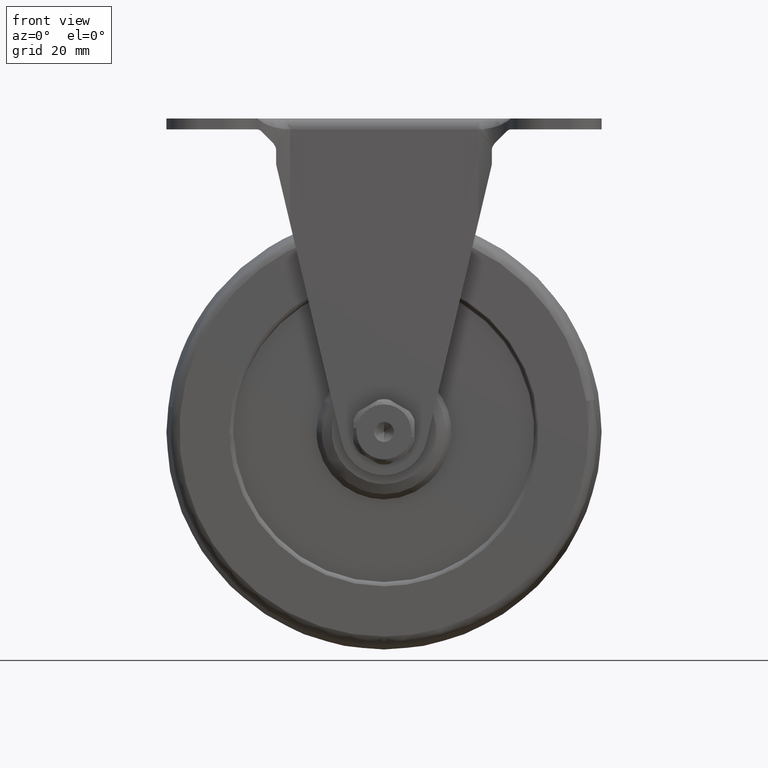
[diagram: clean part render]
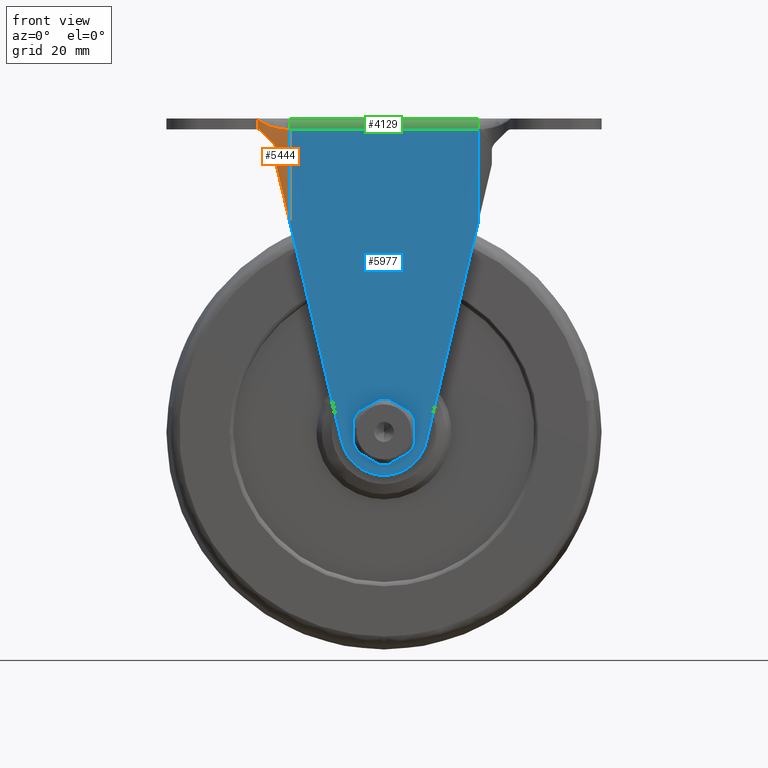
[diagram: same view with three faces highlighted in distinct colors, each labeled with its STEP entity id]
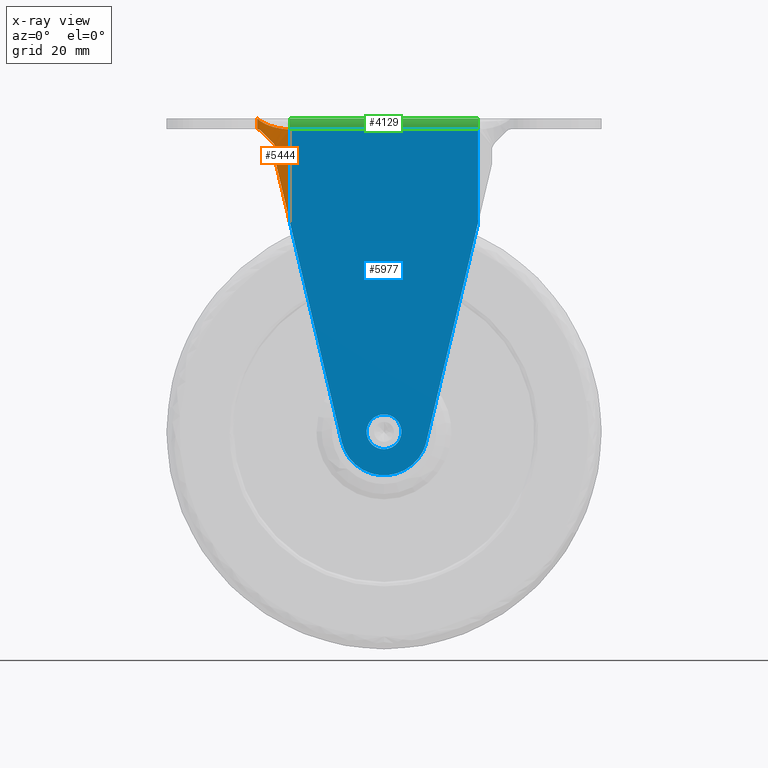
[diagram: x-ray of the same camera — body ghosted, the three highlighted faces saturated]
A machine part, front view with three faces highlighted in distinct colors.
The next image is the same camera in x-ray (body ghosted, the three faces saturated) — at least one of them is partly hidden behind the body in this view.
Their STEP definitions:

[orange] entity #5444 — the highlighted face is a freeform B-spline surface patch.
#3632=CARTESIAN_POINT('',(-24.746450492839500,-19.148997307606152,61.273261414327301));
#3633=VERTEX_POINT('',#3632);
#3639=CARTESIAN_POINT('',(-24.800000000000001,-19.172222607755099,61.732968363290809));
#3640=VERTEX_POINT('',#3639);
#3641=CARTESIAN_POINT('',(-24.800000000000001,-19.172222607755099,61.732968363290809));
#3642=CARTESIAN_POINT('',(-24.800000000000001,-19.172222607755099,61.577262325133503));
#3643=CARTESIAN_POINT('',(-24.782062493051509,-19.164288705788390,61.424046595016762));
#3644=CARTESIAN_POINT('',(-24.746450492839500,-19.148997307606152,61.273261414327301));
#3645=QUASI_UNIFORM_CURVE('',3,(#3641,#3642,#3643,#3644),.UNSPECIFIED.,.F.,.U.);
#3646=EDGE_CURVE('',#3640,#3633,#3645,.T.);
#3689=CARTESIAN_POINT('',(-24.800000000000001,-19.172222607755099,64.817025480499410));
#3690=VERTEX_POINT('',#3689);
#3696=CARTESIAN_POINT('',(-25.376071416192602,-19.452582276446499,66.221456820300588));
#3697=VERTEX_POINT('',#3696);
#3698=CARTESIAN_POINT('',(-25.376071416192548,-19.452582276446499,66.221456820300588));
#3699=CARTESIAN_POINT('',(-25.288305656293140,-19.405432152018331,66.132472638120461));
#3700=CARTESIAN_POINT('',(-25.208731183071329,-19.364774535838510,66.035233419549286));
#3701=CARTESIAN_POINT('',(-25.102636253345530,-19.312276335594792,65.876741512824367));
#3702=CARTESIAN_POINT('',(-25.069493156734531,-19.296201236842752,65.821794139042723));
#3703=CARTESIAN_POINT('',(-25.023357769710969,-19.274159476466661,65.736044459356251));
#3704=CARTESIAN_POINT('',(-25.008547254347100,-19.267144333266589,65.706834853134112));
#3705=CARTESIAN_POINT('',(-24.980487404518289,-19.253948593113620,65.647951213895155));
#3706=CARTESIAN_POINT('',(-24.967199965806049,-19.247749529894801,65.618214114758516));
#3707=CARTESIAN_POINT('',(-24.904455989459748,-19.218663149374859,65.468070787849186));
#3708=CARTESIAN_POINT('',(-24.865976508506719,-19.201423176839331,65.343335425819348));
#3709=CARTESIAN_POINT('',(-24.826660984099380,-19.183945498531230,65.149132969683237));
#3710=CARTESIAN_POINT('',(-24.816640047322220,-19.179530846128898,65.082953961616624));
#3711=CARTESIAN_POINT('',(-24.803343513357209,-19.173684568972170,64.950432876480775));
#3712=CARTESIAN_POINT('',(-24.800000000000011,-19.172222607755099,64.883877869309046));
#3713=CARTESIAN_POINT('',(-24.800000000000001,-19.172222607755099,64.817025480499410));
#3714=B_SPLINE_CURVE_WITH_KNOTS('',3,(#3698,#3699,#3700,#3701,#3702,#3703,#3704,#3705,#3706,#3707,#3708,#3709,#3710,#3711,#3712,#3713),.UNSPECIFIED.,.F.,.U.,(4,2,2,2,2,2,2,4),(0.0,0.250000000000000,0.374999999999992,0.437499999999999,0.500000000000007,0.750000000000016,0.875000000000008,1.0),.UNSPECIFIED.);
#3715=EDGE_CURVE('',#3697,#3690,#3714,.T.);
#3894=CARTESIAN_POINT('',(-28.316012066761299,-22.168579450770501,69.202211669900592));
#3895=VERTEX_POINT('',#3894);
#3901=CARTESIAN_POINT('',(-29.027976358665100,-23.554338269138050,69.499995999999996));
#3902=VERTEX_POINT('',#3901);
#3903=CARTESIAN_POINT('',(-29.027976358665100,-23.554338269138050,69.499995999999996));
#3904=CARTESIAN_POINT('',(-28.978537739837840,-23.429502215446519,69.499995999999982));
#3905=CARTESIAN_POINT('',(-28.926248092743830,-23.306650537670809,69.496362867878616));
#3906=CARTESIAN_POINT('',(-28.816346603409709,-23.065187501959340,69.478928286822807));
#3907=CARTESIAN_POINT('',(-28.758731087578219,-22.946572110590228,69.465163793347472));
#3908=CARTESIAN_POINT('',(-28.638670202607450,-22.713998409055801,69.423295844131630));
#3909=CARTESIAN_POINT('',(-28.576213961229371,-22.600027696880030,69.395304697051202));
#3910=CARTESIAN_POINT('',(-28.479505253617511,-22.433147516626850,69.337012235574917));
#3911=CARTESIAN_POINT('',(-28.446596457234140,-22.377928373967769,69.314689513206034));
#3912=CARTESIAN_POINT('',(-28.380984711299931,-22.270707176989951,69.263625437939368));
#3913=CARTESIAN_POINT('',(-28.348289864608429,-22.218701855702761,69.234937569468897));
#3914=CARTESIAN_POINT('',(-28.316012066761299,-22.168579450770501,69.202211669900592));
#3915=B_SPLINE_CURVE_WITH_KNOTS('',3,(#3903,#3904,#3905,#3906,#3907,#3908,#3909,#3910,#3911,#3912,#3913,#3914),.UNSPECIFIED.,.F.,.U.,(4,2,2,2,2,4),(0.0,0.250000000000000,0.500000000000000,0.750000000000000,0.875000000000000,1.0),.UNSPECIFIED.);
#3916=EDGE_CURVE('',#3902,#3895,#3915,.T.);
#4025=CARTESIAN_POINT('',(-21.590020418879149,-18.499980000000001,69.500000000000000));
#4026=VERTEX_POINT('',#4025);
#4042=CARTESIAN_POINT('',(-29.102518009696151,-23.749993471923052,72.0));
#4043=VERTEX_POINT('',#4042);
#4056=CARTESIAN_POINT('',(-21.590020418879149,-18.499980000000001,69.500000000000000));
#4057=CARTESIAN_POINT('',(-21.711781143334989,-18.501588315176871,69.501071944868144));
#4058=CARTESIAN_POINT('',(-21.957916386643490,-18.504839470663530,69.503238845665720));
#4059=CARTESIAN_POINT('',(-22.330030730454389,-18.531522098056438,69.520289844050765));
#4060=CARTESIAN_POINT('',(-22.707993547285170,-18.575317882872781,69.547366779071794));
#4061=CARTESIAN_POINT('',(-23.090826168394070,-18.638778897941169,69.585521736295021));
#4062=CARTESIAN_POINT('',(-23.477450627216879,-18.722395735431110,69.634462313198938));
#4063=CARTESIAN_POINT('',(-23.866687284064600,-18.827175287227011,69.694268279607854));
#4064=CARTESIAN_POINT('',(-24.257253923230110,-18.953915082126031,69.764917179816834));
#4065=CARTESIAN_POINT('',(-24.647766335639620,-19.103392166814480,69.846412527738465));
#4066=CARTESIAN_POINT('',(-25.036735796582299,-19.276295399294192,69.938760427256014));
#4067=CARTESIAN_POINT('',(-25.422582909634439,-19.473238762950590,70.041929176621835));
#4068=CARTESIAN_POINT('',(-25.803592711552000,-19.694711202723280,70.156041206724936));
#4069=CARTESIAN_POINT('',(-26.171558866375712,-19.936894088294650,70.278446251848521));
#4070=CARTESIAN_POINT('',(-26.536833983881142,-20.207213383370618,70.414755119525054));
#4071=CARTESIAN_POINT('',(-26.907986784484581,-20.516215257702822,70.569057690410816));
#4072=CARTESIAN_POINT('',(-27.295808460996302,-20.883174700718978,70.747583183118664));
#4073=CARTESIAN_POINT('',(-27.691461186906370,-21.313845332889962,70.950509727599552));
#4074=CARTESIAN_POINT('',(-28.084957130984009,-21.813357904884580,71.177786207434792));
#4075=CARTESIAN_POINT('',(-28.462901003271352,-22.386521870755839,71.429512543266029));
#4076=CARTESIAN_POINT('',(-28.817378516495769,-23.034338473690109,71.705377335596381));
#4077=CARTESIAN_POINT('',(-29.005313332289621,-23.506025116446182,71.899562488771465));
#4078=CARTESIAN_POINT('',(-29.102518009696151,-23.749993471923052,72.0));
#4079=B_SPLINE_CURVE_WITH_KNOTS('',3,(#4056,#4057,#4058,#4059,#4060,#4061,#4062,#4063,#4064,#4065,#4066,#4067,#4068,#4069,#4070,#4071,#4072,#4073,#4074,#4075,#4076,#4077,#4078),.UNSPECIFIED.,.F.,.U.,(4,1,1,1,1,1,1,1,1,1,1,1,1,1,1,1,1,1,1,1,4),(0.0,0.036053217283680,0.072880376228309,0.110510700572668,0.148971582655785,0.188288678264745,0.228486003162911,0.269586029493015,0.311609780639697,0.354576923476005,0.398505857208004,0.443413798272667,0.489316860941036,0.533824184303124,0.583836994325608,0.639366959863031,0.700422420056334,0.767009470176379,0.839132633946430,0.916795297580047,1.0),.UNSPECIFIED.);
#4080=EDGE_CURVE('',#4026,#4043,#4079,.T.);
#4873=CARTESIAN_POINT('',(-21.590020418879149,-18.499980000000001,47.908584445823003));
#4874=VERTEX_POINT('',#4873);
#4875=CARTESIAN_POINT('',(-21.590020418879149,-18.499980000000001,47.908584445823003));
#4876=CARTESIAN_POINT('',(-23.234960101091975,-18.499980086128858,54.873442519763131));
#4877=CARTESIAN_POINT('',(-24.746450492839390,-19.148997307606159,61.273261414327322));
#4885=(BOUNDED_CURVE()B_SPLINE_CURVE(2,(#4875,#4876,#4877),.UNSPECIFIED.,.F.,.U.)CURVE()GEOMETRIC_REPRESENTATION_ITEM()QUASI_UNIFORM_CURVE()RATIONAL_B_SPLINE_CURVE((1.0,0.979508258568555,1.0))REPRESENTATION_ITEM(''));
#4886=EDGE_CURVE('',#4874,#3633,#4885,.T.);
#4925=CARTESIAN_POINT('',(-29.102514943055748,-23.749994594481699,69.499995999999996));
#4926=VERTEX_POINT('',#4925);
#4927=CARTESIAN_POINT('',(-29.027976358664990,-23.554338269138100,69.499995999999996));
#4928=CARTESIAN_POINT('',(-29.066525926514682,-23.651678689158416,69.499995999999996));
#4929=CARTESIAN_POINT('',(-29.102514943055638,-23.749994594481741,69.499995999999996));
#4937=(BOUNDED_CURVE()B_SPLINE_CURVE(2,(#4927,#4928,#4929),.UNSPECIFIED.,.F.,.U.)CURVE()GEOMETRIC_REPRESENTATION_ITEM()QUASI_UNIFORM_CURVE()RATIONAL_B_SPLINE_CURVE((1.0,0.999914376415922,1.0))REPRESENTATION_ITEM(''));
#4938=EDGE_CURVE('',#3902,#4926,#4937,.T.);
#5394=CARTESIAN_POINT('',(-29.187433134382619,-23.994124125151959,47.306299056968577));
#5395=CARTESIAN_POINT('',(-29.187433134382619,-23.994124125151959,72.617342523575786));
#5396=CARTESIAN_POINT('',(-27.264622293626100,-18.164423988314354,47.306299056968577));
#5397=CARTESIAN_POINT('',(-27.264622293626100,-18.164423988314354,72.617342523575786));
#5398=CARTESIAN_POINT('',(-21.135904306216361,-18.512879215819328,47.306299056968577));
#5399=CARTESIAN_POINT('',(-21.135904306216361,-18.512879215819328,72.617342523575786));
#5407=(BOUNDED_SURFACE()B_SPLINE_SURFACE(1,2,((#5394,#5396,#5398),(#5395,#5397,#5399)),.UNSPECIFIED.,.F.,.F.,.U.)B_SPLINE_SURFACE_WITH_KNOTS((2,2),(3,3),(0.0,25.311043466607209),(0.0,10.862536283628019),.UNSPECIFIED.)GEOMETRIC_REPRESENTATION_ITEM()RATIONAL_B_SPLINE_SURFACE(((1.0,0.793353340291235,1.0),(1.0,0.793353340291235,1.0)))REPRESENTATION_ITEM('')SURFACE());
#5408=CARTESIAN_POINT('',(-24.800000000000001,-19.172222607755099,61.732968363290809));
#5409=CARTESIAN_POINT('',(-24.800000000000001,-19.172222607755099,64.817025480499410));
#5410=QUASI_UNIFORM_CURVE('',1,(#5408,#5409),.UNSPECIFIED.,.F.,.U.);
#5411=EDGE_CURVE('',#3640,#3690,#5410,.T.);
#5412=ORIENTED_EDGE('',*,*,#5411,.F.);
#5413=ORIENTED_EDGE('',*,*,#3646,.T.);
#5414=ORIENTED_EDGE('',*,*,#4886,.F.);
#5415=CARTESIAN_POINT('',(-21.590020418879149,-18.499980000000001,47.908584445823003));
#5416=CARTESIAN_POINT('',(-21.590020418879149,-18.499980000000001,69.500000000000000));
#5417=QUASI_UNIFORM_CURVE('',1,(#5415,#5416),.UNSPECIFIED.,.F.,.U.);
#5418=EDGE_CURVE('',#4874,#4026,#5417,.T.);
#5419=ORIENTED_EDGE('',*,*,#5418,.T.);
#5420=ORIENTED_EDGE('',*,*,#4080,.T.);
#5421=CARTESIAN_POINT('',(-29.102514943055748,-23.749994594481699,69.499995999999996));
#5422=CARTESIAN_POINT('',(-29.102518009696151,-23.749993471923052,72.0));
#5423=QUASI_UNIFORM_CURVE('',1,(#5421,#5422),.UNSPECIFIED.,.F.,.U.);
#5424=EDGE_CURVE('',#4926,#4043,#5423,.T.);
#5425=ORIENTED_EDGE('',*,*,#5424,.F.);
#5426=ORIENTED_EDGE('',*,*,#4938,.F.);
#5427=ORIENTED_EDGE('',*,*,#3916,.T.);
#5428=CARTESIAN_POINT('',(-25.376071416192520,-19.452582276446531,66.221456820300673));
#5429=CARTESIAN_POINT('',(-27.196907900987092,-20.430784560797740,68.067571360514265));
#5430=CARTESIAN_POINT('',(-28.316012066761260,-22.168579450770611,69.202211669900635));
#5438=(BOUNDED_CURVE()B_SPLINE_CURVE(2,(#5428,#5429,#5430),.UNSPECIFIED.,.F.,.U.)CURVE()GEOMETRIC_REPRESENTATION_ITEM()QUASI_UNIFORM_CURVE()RATIONAL_B_SPLINE_CURVE((1.0,0.968205710645091,1.0))REPRESENTATION_ITEM(''));
#5439=EDGE_CURVE('',#3697,#3895,#5438,.T.);
#5440=ORIENTED_EDGE('',*,*,#5439,.F.);
#5441=ORIENTED_EDGE('',*,*,#3715,.T.);
#5442=EDGE_LOOP('',(#5412,#5413,#5414,#5419,#5420,#5425,#5426,#5427,#5440,#5441));
#5443=FACE_OUTER_BOUND('',#5442,.T.);
#5444=ADVANCED_FACE('',(#5443),#5407,.F.);

[blue] entity #5977 — the highlighted face is a freeform B-spline surface patch.
#2356=CARTESIAN_POINT('',(3.972038105429503,-18.499980000000001,-0.472136938837739));
#2357=VERTEX_POINT('',#2356);
#2363=CARTESIAN_POINT('',(0.0,-18.499980000000001,3.999999999999885));
#2364=VERTEX_POINT('',#2363);
#2365=CARTESIAN_POINT('',(3.972038105429504,-18.499980000000004,-0.472136938837739));
#2366=CARTESIAN_POINT('',(3.999999999999885,-18.499979999999997,-0.236896478820580));
#2367=CARTESIAN_POINT('',(3.999999999999885,-18.499980000000001,0.0));
#2368=CARTESIAN_POINT('',(3.999999999999885,-18.499980000000004,3.999999999999885));
#2369=CARTESIAN_POINT('',(0.0,-18.499980000000001,3.999999999999885));
#2377=(BOUNDED_CURVE()B_SPLINE_CURVE(2,(#2365,#2366,#2367,#2368,#2369),.UNSPECIFIED.,.F.,.U.)B_SPLINE_CURVE_WITH_KNOTS((3,2,3),(0.229562473497713,0.250000000000000,0.500000000000000),.UNSPECIFIED.)CURVE()GEOMETRIC_REPRESENTATION_ITEM()RATIONAL_B_SPLINE_CURVE((0.956026754152739,0.976055948312639,1.0,0.707106781186548,1.0))REPRESENTATION_ITEM(''));
#2378=EDGE_CURVE('',#2357,#2364,#2377,.T.);
#2380=CARTESIAN_POINT('',(-3.992539214078919,-18.499980000000001,0.244193824739786));
#2381=VERTEX_POINT('',#2380);
#2382=CARTESIAN_POINT('',(0.0,-18.499980000000001,3.999999999999885));
#2383=CARTESIAN_POINT('',(-3.762824897231349,-18.499980000000008,3.999999999999884));
#2384=CARTESIAN_POINT('',(-3.992539214078920,-18.499979999999997,0.244193824739786));
#2392=(BOUNDED_CURVE()B_SPLINE_CURVE(2,(#2382,#2383,#2384),.UNSPECIFIED.,.F.,.U.)B_SPLINE_CURVE_WITH_KNOTS((3,3),(0.500000000000000,0.739332991059238),.UNSPECIFIED.)CURVE()GEOMETRIC_REPRESENTATION_ITEM()RATIONAL_B_SPLINE_CURVE((1.0,0.719603959521634,0.976072103434104))REPRESENTATION_ITEM(''));
#2393=EDGE_CURVE('',#2364,#2381,#2392,.T.);
#2467=CARTESIAN_POINT('',(0.0,-18.499980000000001,-3.999999999999885));
#2468=VERTEX_POINT('',#2467);
#2469=CARTESIAN_POINT('',(-3.992539214078919,-18.499979999999997,0.244193824739786));
#2470=CARTESIAN_POINT('',(-3.999999999999885,-18.499979999999997,0.122210718859900));
#2471=CARTESIAN_POINT('',(-3.999999999999885,-18.499980000000001,0.0));
#2472=CARTESIAN_POINT('',(-3.999999999999885,-18.499980000000004,-3.999999999999885));
#2473=CARTESIAN_POINT('',(0.0,-18.499980000000001,-3.999999999999885));
#2481=(BOUNDED_CURVE()B_SPLINE_CURVE(2,(#2469,#2470,#2471,#2472,#2473),.UNSPECIFIED.,.F.,.U.)B_SPLINE_CURVE_WITH_KNOTS((3,2,3),(0.739332991059237,0.750000000000000,1.0),.UNSPECIFIED.)CURVE()GEOMETRIC_REPRESENTATION_ITEM()RATIONAL_B_SPLINE_CURVE((0.976072103434103,0.987502821664913,1.0,0.707106781186548,1.0))REPRESENTATION_ITEM(''));
#2482=EDGE_CURVE('',#2381,#2468,#2481,.T.);
#2484=CARTESIAN_POINT('',(0.0,-18.499980000000001,-3.999999999999885));
#2485=CARTESIAN_POINT('',(3.552698103425767,-18.499980000000004,-3.999999999999885));
#2486=CARTESIAN_POINT('',(3.972038105429504,-18.499979999999997,-0.472136938837739));
#2494=(BOUNDED_CURVE()B_SPLINE_CURVE(2,(#2484,#2485,#2486),.UNSPECIFIED.,.F.,.U.)B_SPLINE_CURVE_WITH_KNOTS((3,3),(0.0,0.229562473497713),.UNSPECIFIED.)CURVE()GEOMETRIC_REPRESENTATION_ITEM()RATIONAL_B_SPLINE_CURVE((1.0,0.731050832873908,0.956026754152739))REPRESENTATION_ITEM(''));
#2495=EDGE_CURVE('',#2468,#2357,#2494,.T.);
#4025=CARTESIAN_POINT('',(-21.590020418879149,-18.499980000000001,69.500000000000000));
#4026=VERTEX_POINT('',#4025);
#4099=CARTESIAN_POINT('',(21.590029581120952,-18.499980000000001,69.500000000000000));
#4100=VERTEX_POINT('',#4099);
#4122=CARTESIAN_POINT('',(21.590029581120952,-18.499980000000001,69.500000000000000));
#4123=CARTESIAN_POINT('',(-21.590020418879149,-18.499980000000001,69.500000000000000));
#4124=QUASI_UNIFORM_CURVE('',1,(#4122,#4123),.UNSPECIFIED.,.F.,.U.);
#4125=EDGE_CURVE('',#4100,#4026,#4124,.T.);
#4836=CARTESIAN_POINT('',(9.732252464196970,-18.499980000000001,-2.298527566315305));
#4837=VERTEX_POINT('',#4836);
#4843=CARTESIAN_POINT('',(-9.732252464196970,-18.499980000000001,-2.298527566315295));
#4844=VERTEX_POINT('',#4843);
#4845=CARTESIAN_POINT('',(-9.732252464196971,-18.499980000000001,-2.298527566315294));
#4846=CARTESIAN_POINT('',(-7.913343065765032,-18.499979999999997,-9.999992821498067));
#4847=CARTESIAN_POINT('',(0.0,-18.499980000000001,-9.999992821498069));
#4848=CARTESIAN_POINT('',(7.913343065765020,-18.499979999999997,-9.999992821498067));
#4849=CARTESIAN_POINT('',(9.732252464196968,-18.499980000000001,-2.298527566315308));
#4857=(BOUNDED_CURVE()B_SPLINE_CURVE(2,(#4845,#4846,#4847,#4848,#4849),.UNSPECIFIED.,.F.,.U.)B_SPLINE_CURVE_WITH_KNOTS((3,2,3),(0.0,0.500000000000000,1.0),.UNSPECIFIED.)CURVE()GEOMETRIC_REPRESENTATION_ITEM()RATIONAL_B_SPLINE_CURVE((1.0,0.784172645047544,1.0,0.784172645047544,1.0))REPRESENTATION_ITEM(''));
#4858=EDGE_CURVE('',#4844,#4837,#4857,.T.);
#4873=CARTESIAN_POINT('',(-21.590020418879149,-18.499980000000001,47.908584445823003));
#4874=VERTEX_POINT('',#4873);
#4892=CARTESIAN_POINT('',(-21.590020418879149,-18.499980000000001,47.908584445823003));
#4893=CARTESIAN_POINT('',(-9.732252464196970,-18.499980000000001,-2.298527566315295));
#4894=QUASI_UNIFORM_CURVE('',1,(#4892,#4893),.UNSPECIFIED.,.F.,.U.);
#4895=EDGE_CURVE('',#4874,#4844,#4894,.T.);
#5415=CARTESIAN_POINT('',(-21.590020418879149,-18.499980000000001,47.908584445823003));
#5416=CARTESIAN_POINT('',(-21.590020418879149,-18.499980000000001,69.500000000000000));
#5417=QUASI_UNIFORM_CURVE('',1,(#5415,#5416),.UNSPECIFIED.,.F.,.U.);
#5418=EDGE_CURVE('',#4874,#4026,#5417,.T.);
#5907=CARTESIAN_POINT('',(21.590029581120952,-18.499980000000001,47.908623239776603));
#5908=VERTEX_POINT('',#5907);
#5946=CARTESIAN_POINT('',(21.590029581120952,-18.499980000000001,47.908623239776603));
#5947=CARTESIAN_POINT('',(21.590029581120952,-18.499980000000001,69.500000000000000));
#5948=QUASI_UNIFORM_CURVE('',1,(#5946,#5947),.UNSPECIFIED.,.F.,.U.);
#5949=EDGE_CURVE('',#5908,#4100,#5948,.T.);
#5954=CARTESIAN_POINT('',(-23.746864489105199,-18.499980000000001,73.471024487347421));
#5955=CARTESIAN_POINT('',(-23.746864489105199,-18.499980000000001,-13.971019441201349));
#5956=CARTESIAN_POINT('',(23.746870948928880,-18.499980000000001,73.471024487347421));
#5957=CARTESIAN_POINT('',(23.746870948928880,-18.499980000000001,-13.971019441201349));
#5958=B_SPLINE_SURFACE_WITH_KNOTS('',1,1,((#5954,#5956),(#5955,#5957)),.UNSPECIFIED.,.F.,.F.,.U.,(2,2),(2,2),(0.0,87.442043928548770),(0.0,47.493735438034079),.UNSPECIFIED.);
#5959=ORIENTED_EDGE('',*,*,#5949,.T.);
#5960=ORIENTED_EDGE('',*,*,#4125,.T.);
#5961=ORIENTED_EDGE('',*,*,#5418,.F.);
#5962=ORIENTED_EDGE('',*,*,#4895,.T.);
#5963=ORIENTED_EDGE('',*,*,#4858,.T.);
#5964=CARTESIAN_POINT('',(9.732252464196970,-18.499980000000001,-2.298527566315305));
#5965=CARTESIAN_POINT('',(21.590029581120952,-18.499980000000001,47.908623239776603));
#5966=QUASI_UNIFORM_CURVE('',1,(#5964,#5965),.UNSPECIFIED.,.F.,.U.);
#5967=EDGE_CURVE('',#4837,#5908,#5966,.T.);
#5968=ORIENTED_EDGE('',*,*,#5967,.T.);
#5969=EDGE_LOOP('',(#5959,#5960,#5961,#5962,#5963,#5968));
#5970=FACE_OUTER_BOUND('',#5969,.T.);
#5971=ORIENTED_EDGE('',*,*,#2393,.F.);
#5972=ORIENTED_EDGE('',*,*,#2378,.F.);
#5973=ORIENTED_EDGE('',*,*,#2495,.F.);
#5974=ORIENTED_EDGE('',*,*,#2482,.F.);
#5975=EDGE_LOOP('',(#5971,#5972,#5973,#5974));
#5976=FACE_BOUND('',#5975,.T.);
#5977=ADVANCED_FACE('',(#5970,#5976),#5958,.T.);

[green] entity #4129 — the highlighted face is a freeform B-spline surface patch.
#4025=CARTESIAN_POINT('',(-21.590020418879149,-18.499980000000001,69.500000000000000));
#4026=VERTEX_POINT('',#4025);
#4027=CARTESIAN_POINT('',(-21.590020549778849,-15.999980000000001,72.0));
#4028=VERTEX_POINT('',#4027);
#4029=CARTESIAN_POINT('',(-21.590020418879149,-18.499980000000001,69.499999999999972));
#4030=CARTESIAN_POINT('',(-21.590020429787462,-18.499980000000001,69.827249234748919));
#4031=CARTESIAN_POINT('',(-21.590020440695760,-18.434911691670798,70.154369710898180));
#4032=CARTESIAN_POINT('',(-21.590020462512388,-18.184445970885651,70.759047450927227));
#4033=CARTESIAN_POINT('',(-21.590020473420690,-17.999147105995458,71.036366799937284));
#4034=CARTESIAN_POINT('',(-21.590020495237312,-17.536346799937292,71.499167105995454));
#4035=CARTESIAN_POINT('',(-21.590020506145621,-17.259027450927249,71.684465970885640));
#4036=CARTESIAN_POINT('',(-21.590020527962238,-16.654349710898199,71.934931691670783));
#4037=CARTESIAN_POINT('',(-21.590020538870551,-16.327229234748931,72.000000000000043));
#4038=CARTESIAN_POINT('',(-21.590020549778849,-15.999979999999990,72.000000000000014));
#4039=B_SPLINE_CURVE_WITH_KNOTS('',3,(#4029,#4030,#4031,#4032,#4033,#4034,#4035,#4036,#4037,#4038),.UNSPECIFIED.,.F.,.U.,(4,2,2,2,4),(0.0,0.250000000000000,0.500000000000000,0.750000000000000,1.0),.UNSPECIFIED.);
#4040=EDGE_CURVE('',#4026,#4028,#4039,.T.);
#4085=CARTESIAN_POINT('',(22.669530834393449,-15.890931531586659,71.997620553954647));
#4086=CARTESIAN_POINT('',(-22.696509334383158,-15.890931531586659,71.997620553954647));
#4087=CARTESIAN_POINT('',(22.669530834393449,-18.690130662724108,72.119836227408825));
#4088=CARTESIAN_POINT('',(-22.696509334383155,-18.690130662724108,72.119836227408825));
#4089=CARTESIAN_POINT('',(22.669530834393452,-18.493837282981787,69.324854768495740));
#4090=CARTESIAN_POINT('',(-22.696509334383165,-18.493837282981787,69.324854768495740));
#4098=(BOUNDED_SURFACE()B_SPLINE_SURFACE(1,2,((#4085,#4087,#4089),(#4086,#4088,#4090)),.UNSPECIFIED.,.F.,.F.,.U.)B_SPLINE_SURFACE_WITH_KNOTS((2,2),(3,3),(0.0,45.366040168776621),(0.0,4.479356351285180),.UNSPECIFIED.)GEOMETRIC_REPRESENTATION_ITEM()RATIONAL_B_SPLINE_SURFACE(((1.0,0.664513898409564,0.996233561507358),(1.0,0.664513898409564,0.996233561507358)))REPRESENTATION_ITEM('')SURFACE());
#4099=CARTESIAN_POINT('',(21.590029581120952,-18.499980000000001,69.500000000000000));
#4100=VERTEX_POINT('',#4099);
#4101=CARTESIAN_POINT('',(21.590029450221252,-15.999980000000001,72.0));
#4102=VERTEX_POINT('',#4101);
#4103=CARTESIAN_POINT('',(21.590029581120952,-18.499980000000001,69.500000000000000));
#4104=CARTESIAN_POINT('',(21.590029581119783,-18.499980000000022,71.999999999999957));
#4105=CARTESIAN_POINT('',(21.590029450221252,-15.999980000000001,72.0));
#4113=(BOUNDED_CURVE()B_SPLINE_CURVE(2,(#4103,#4104,#4105),.UNSPECIFIED.,.F.,.U.)CURVE()GEOMETRIC_REPRESENTATION_ITEM()QUASI_UNIFORM_CURVE()RATIONAL_B_SPLINE_CURVE((1.0,0.707106781186546,1.0))REPRESENTATION_ITEM(''));
#4114=EDGE_CURVE('',#4100,#4102,#4113,.T.);
#4115=ORIENTED_EDGE('',*,*,#4114,.T.);
#4116=CARTESIAN_POINT('',(-21.590020549778849,-15.999980000000001,72.0));
#4117=CARTESIAN_POINT('',(21.590029450221252,-15.999980000000001,72.0));
#4118=QUASI_UNIFORM_CURVE('',1,(#4116,#4117),.UNSPECIFIED.,.F.,.U.);
#4119=EDGE_CURVE('',#4028,#4102,#4118,.T.);
#4120=ORIENTED_EDGE('',*,*,#4119,.F.);
#4121=ORIENTED_EDGE('',*,*,#4040,.F.);
#4122=CARTESIAN_POINT('',(21.590029581120952,-18.499980000000001,69.500000000000000));
#4123=CARTESIAN_POINT('',(-21.590020418879149,-18.499980000000001,69.500000000000000));
#4124=QUASI_UNIFORM_CURVE('',1,(#4122,#4123),.UNSPECIFIED.,.F.,.U.);
#4125=EDGE_CURVE('',#4100,#4026,#4124,.T.);
#4126=ORIENTED_EDGE('',*,*,#4125,.F.);
#4127=EDGE_LOOP('',(#4115,#4120,#4121,#4126));
#4128=FACE_OUTER_BOUND('',#4127,.T.);
#4129=ADVANCED_FACE('',(#4128),#4098,.T.);